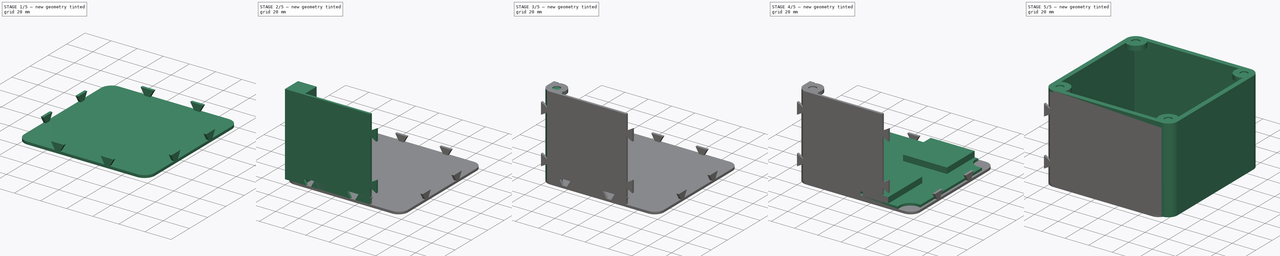
[diagram: build sequence overview — one tinted view per stage of 5, left to right]
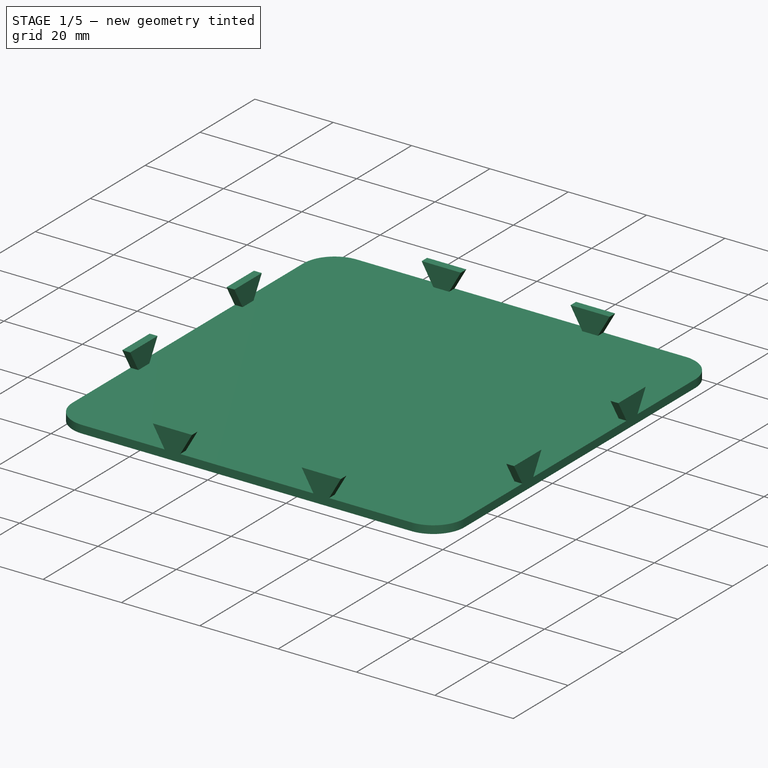
[diagram: stage 1 of 5 — iso view after this stage's code; geometry added in this stage tinted green]
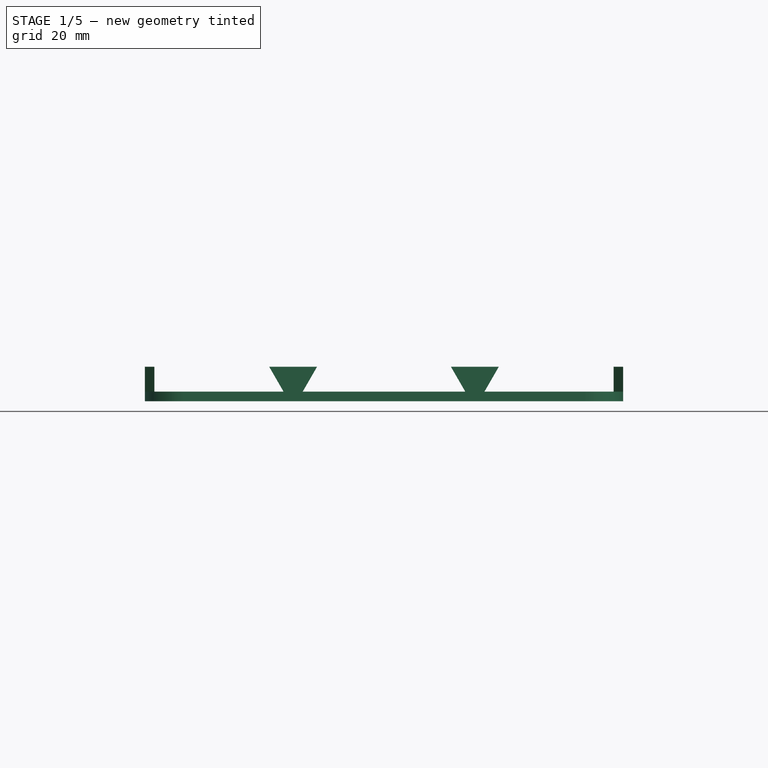
[diagram: stage 1 of 5 — front view after this stage's code; geometry added in this stage tinted green]
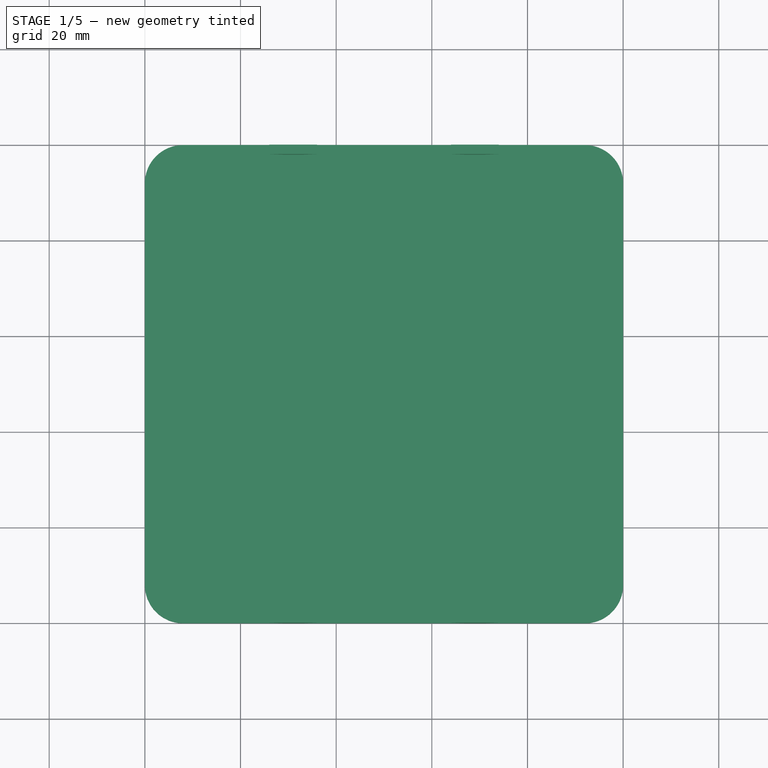
[diagram: stage 1 of 5 — top view after this stage's code; geometry added in this stage tinted green]
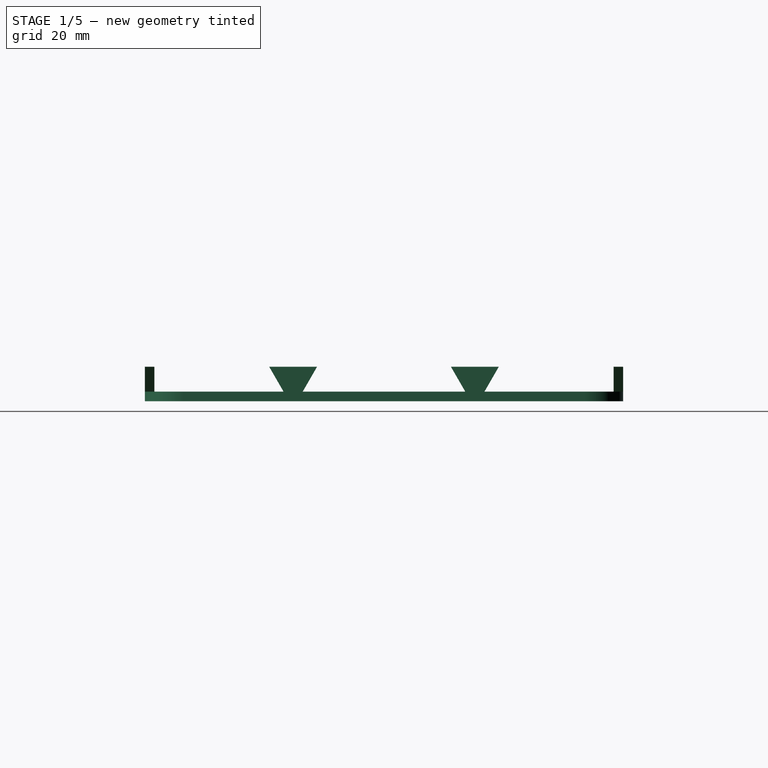
[diagram: stage 1 of 5 — right view after this stage's code; geometry added in this stage tinted green]
FCSTD DOCUMENT  (FreeCAD 0.17R13247 (Git))
Label: ermina_v5
License: All rights reserved
LicenseURL: http://en.wikipedia.org/wiki/All_rights_reserved
objects: Sketcher::SketchObject×20, PartDesign::Pocket×11, PartDesign::Pad×9, PartDesign::Body×5, PartDesign::Fillet×3
note: 68 computed .brp shape members not serialized (recipe doc carries the construction recipe); baked Part::Feature solids carry a one-line shape summary decoded from their .brp

FEATURE [PartDesign::Body] Body003  label="btm wall"
  Group = -> [Sketch016,Pad009,Sketch017,Pocket007,Sketch018,Pocket008]
  Origin = -> Origin003
  Placement = pos=(10.8,0,0) rot=(0,0,1;0rad)
  Tip = -> Pad009
FEATURE [Sketcher::SketchObject] Sketch019
  MapMode = 5
  Support = -> [XY_Plane004]
  sketch-geometry (4):
    g0: LineSegment StartX=0 StartY=0 StartZ=0 EndX=100 EndY=0 EndZ=0
    g1: LineSegment StartX=100 StartY=0 StartZ=0 EndX=100 EndY=100 EndZ=0
    g2: LineSegment StartX=100 StartY=100 StartZ=0 EndX=0 EndY=100 EndZ=0
    g3: LineSegment StartX=0 StartY=100 StartZ=0 EndX=0 EndY=0 EndZ=0
  constraints (13):
    c: Coincident(g0,g1)
    c: Coincident(g1,g2)
    c: Coincident(g2,g3)
    c: Coincident(g3,g0)
    c: Horizontal(g0)
    c: Horizontal(g2)
    c: Vertical(g1)
    c: Vertical(g3)
    c: Coincident(g0,g-1)
    c: Equal(g0,g1)
    c: Equal(g1,g2)
    c: Equal(g2,g3)
    c: DistanceX(g2,g2) = 100
FEATURE [PartDesign::Pad] Pad010
  Length = 2
  Length2 = 100
  Profile = -> Sketch019
  Reversed = true
  Type = 0
FEATURE [Sketcher::SketchObject] Sketch020
  ExternalGeometry = -> [Pad010]
  MapMode = 5
  Support = -> [Pad010]
  sketch-geometry (32):
    g0: LineSegment StartX=0 StartY=74 StartZ=0 EndX=2 EndY=74 EndZ=0
    g1: LineSegment StartX=2 StartY=74 StartZ=0 EndX=2 EndY=64 EndZ=0
    g2: LineSegment StartX=2 StartY=64 StartZ=0 EndX=0 EndY=64 EndZ=0
    g3: LineSegment StartX=0 StartY=64 StartZ=0 EndX=0 EndY=74 EndZ=0
    g4: LineSegment StartX=26 StartY=100 StartZ=0 EndX=36 EndY=100 EndZ=0
    g5: LineSegment StartX=36 StartY=100 StartZ=0 EndX=36 EndY=98 EndZ=0
    g6: LineSegment StartX=36 StartY=98 StartZ=0 EndX=26 EndY=98 EndZ=0
    g7: LineSegment StartX=26 StartY=98 StartZ=0 EndX=26 EndY=100 EndZ=0
    g8: LineSegment StartX=64 StartY=100 StartZ=0 EndX=74 EndY=100 EndZ=0
    g9: LineSegment StartX=74 StartY=100 StartZ=0 EndX=74 EndY=98 EndZ=0
    g10: LineSegment StartX=74 StartY=98 StartZ=0 EndX=64 EndY=98 EndZ=0
    g11: LineSegment StartX=64 StartY=98 StartZ=0 EndX=64 EndY=100 EndZ=0
    g12: LineSegment StartX=98 StartY=74 StartZ=0 EndX=100 EndY=74 EndZ=0
    g13: LineSegment StartX=100 StartY=74 StartZ=0 EndX=100 EndY=64 EndZ=0
    g14: LineSegment StartX=100 StartY=64 StartZ=0 EndX=98 EndY=64 EndZ=0
    g15: LineSegment StartX=98 StartY=64 StartZ=0 EndX=98 EndY=74 EndZ=0
    g16: LineSegment StartX=0 StartY=36 StartZ=0 EndX=2 EndY=36 EndZ=0
    g17: LineSegment StartX=2 StartY=36 StartZ=0 EndX=2 EndY=26 EndZ=0
    g18: LineSegment StartX=2 StartY=26 StartZ=0 EndX=0 EndY=26 EndZ=0
    g19: LineSegment StartX=0 StartY=26 StartZ=0 EndX=0 EndY=36 EndZ=0
    g20: LineSegment StartX=26 StartY=2 StartZ=0 EndX=36 EndY=2 EndZ=0
    g21: LineSegment StartX=36 StartY=2 StartZ=0 EndX=36 EndY=0 EndZ=0
    g22: LineSegment StartX=36 StartY=0 StartZ=0 EndX=26 EndY=0 EndZ=0
    g23: LineSegment StartX=26 StartY=0 StartZ=0 EndX=26 EndY=2 EndZ=0
    g24: LineSegment StartX=64 StartY=2 StartZ=0 EndX=74 EndY=2 EndZ=0
    g25: LineSegment StartX=74 StartY=2 StartZ=0 EndX=74 EndY=0 EndZ=0
    g26: LineSegment StartX=74 StartY=0 StartZ=0 EndX=64 EndY=0 EndZ=0
    g27: LineSegment StartX=64 StartY=0 StartZ=0 EndX=64 EndY=2 EndZ=0
    g28: LineSegment StartX=98 StartY=36 StartZ=0 EndX=100 EndY=36 EndZ=0
    g29: LineSegment StartX=100 StartY=36 StartZ=0 EndX=100 EndY=26 EndZ=0
    g30: LineSegment StartX=100 StartY=26 StartZ=0 EndX=98 EndY=26 EndZ=0
    g31: LineSegment StartX=98 StartY=26 StartZ=0 EndX=98 EndY=36 EndZ=0
  constraints (104):
    c: Coincident(g0,g1)
    c: Coincident(g1,g2)
    c: Coincident(g2,g3)
    c: Coincident(g3,g0)
    c: Horizontal(g0)
    c: Horizontal(g2)
    c: Vertical(g1)
    c: Vertical(g3)
    c: Coincident(g4,g5)
    c: Coincident(g5,g6)
    c: Coincident(g6,g7)
    c: Coincident(g7,g4)
    c: Horizontal(g4)
    c: Horizontal(g6)
    c: Vertical(g5)
    c: Vertical(g7)
    c: Coincident(g8,g9)
    c: Coincident(g9,g10)
    c: Coincident(g10,g11)
    c: Coincident(g11,g8)
    c: Horizontal(g8)
    c: Horizontal(g10)
    c: Vertical(g9)
    c: Vertical(g11)
    c: Coincident(g12,g13)
    c: Coincident(g13,g14)
    c: Coincident(g14,g15)
    c: Coincident(g15,g12)
    c: Horizontal(g12)
    c: Horizontal(g14)
    c: Vertical(g13)
    c: Vertical(g15)
    c: Coincident(g16,g17)
    c: Coincident(g17,g18)
    c: Coincident(g18,g19)
    c: Coincident(g19,g16)
    c: Horizontal(g16)
    c: Horizontal(g18)
    c: Vertical(g17)
    c: Vertical(g19)
    c: Coincident(g20,g21)
    c: Coincident(g21,g22)
    c: Coincident(g22,g23)
    c: Coincident(g23,g20)
    c: Horizontal(g20)
    c: Horizontal(g22)
    c: Vertical(g21)
    c: Vertical(g23)
    c: Coincident(g24,g25)
    c: Coincident(g25,g26)
    c: Coincident(g26,g27)
    c: Coincident(g27,g24)
    c: Horizontal(g24)
    c: Horizontal(g26)
    c: Vertical(g25)
    c: Vertical(g27)
    c: Coincident(g28,g29)
    c: Coincident(g29,g30)
    c: Coincident(g30,g31)
    c: Coincident(g31,g28)
    c: Horizontal(g28)
    c: Horizontal(g30)
    c: Vertical(g29)
    c: Vertical(g31)
    c: Equal(g26,g24)
    c: Equal(g24,g10)
    c: Equal(g10,g8)
    c: Equal(g8,g4)
    c: Equal(g4,g6)
    c: Equal(g6,g20)
    c: Equal(g20,g22)
    c: Equal(g7,g11)
    c: Equal(g11,g27)
    c: Equal(g27,g23)
    c: Equal(g3,g1)
    c: Equal(g1,g17)
    c: Equal(g17,g19)
    c: Equal(g19,g31)
    c: Equal(g31,g29)
    c: Equal(g29,g13)
    c: Equal(g13,g15)
    c: Equal(g0,g16)
    c: Equal(g16,g12)
    c: Equal(g12,g28)
    c: DistanceY(g3,g3) = 10
    c: DistanceX(g0,g0) = 2
    c: DistanceX(g4,g4) = 10
    c: DistanceY(g7,g7) = 2
    c: DistanceX(g-2,g22) = 26
    c: PointOnObject(g22,g-1)
    c: Distance(g25,g-3) = 26
    c: PointOnObject(g25,g-1)
    c: DistanceY(g-1,g29) = 26
    c: PointOnObject(g29,g-3)
    c: Distance(g12,g-4) = 26
    c: PointOnObject(g12,g-3)
    c: Distance(g8,g-3) = 26
    c: PointOnObject(g8,g-4)
    c: DistanceX(g-2,g4) = 26
    c: PointOnObject(g4,g-4)
    c: DistanceY(g-1,g18) = 26
    c: PointOnObject(g16,g-2)
    c: Distance(g0,g-4) = 26
    c: PointOnObject(g0,g-2)
FEATURE [PartDesign::Pad] Pad011
  BaseFeature = -> Pad010
  Length = 5.2
  Length2 = 100
  Profile = -> Sketch020
  Type = 0
FEATURE [Sketcher::SketchObject] Sketch021
  ExternalGeometry = -> [Pad011]
  MapMode = 5
  Placement = pos=(0,100,0) rot=(0,0.707107,0.707107;3.14159rad)
  Support = -> [Pad011]
  sketch-geometry (12):
    g0: LineSegment StartX=-74 StartY=5.2 StartZ=0 EndX=-71 EndY=0 EndZ=0
    g1: LineSegment StartX=-71 StartY=0 StartZ=0 EndX=-74 EndY=0 EndZ=0
    g2: LineSegment StartX=-74 StartY=0 StartZ=0 EndX=-74 EndY=5.2 EndZ=0
    g3: LineSegment StartX=-64 StartY=5.2 StartZ=0 EndX=-64 EndY=0 EndZ=0
    g4: LineSegment StartX=-64 StartY=0 StartZ=0 EndX=-67 EndY=0 EndZ=0
    g5: LineSegment StartX=-67 StartY=0 StartZ=0 EndX=-64 EndY=5.2 EndZ=0
    g6: LineSegment StartX=-36 StartY=5.2 StartZ=0 EndX=-36 EndY=0 EndZ=0
    g7: LineSegment StartX=-36 StartY=0 StartZ=0 EndX=-33 EndY=0 EndZ=0
    g8: LineSegment StartX=-33 StartY=0 StartZ=0 EndX=-36 EndY=5.2 EndZ=0
    g9: LineSegment StartX=-29 StartY=0 StartZ=0 EndX=-26 EndY=0 EndZ=0
    g10: LineSegment StartX=-26 StartY=0 StartZ=0 EndX=-26 EndY=5.2 EndZ=0
    g11: LineSegment StartX=-26 StartY=5.2 StartZ=0 EndX=-29 EndY=0 EndZ=0
  constraints (35):
    c: Coincident(g0,g1)
    c: Horizontal(g1)
    c: Coincident(g1,g2)
    c: Coincident(g2,g0)
    c: Vertical(g2)
    c: Vertical(g3)
    c: Coincident(g3,g4)
    c: Horizontal(g4)
    c: Coincident(g4,g5)
    c: Coincident(g5,g3)
    c: Vertical(g6)
    c: Coincident(g6,g7)
    c: Horizontal(g7)
    c: Coincident(g7,g8)
    c: Coincident(g8,g6)
    c: Horizontal(g9)
    c: Coincident(g9,g10)
    c: Vertical(g10)
    c: Coincident(g10,g11)
    c: Coincident(g11,g9)
    c: Equal(g2,g3)
    c: Equal(g3,g6)
    c: Equal(g6,g10)
    c: Equal(g0,g8)
    c: Equal(g5,g11)
    c: Equal(g1,g4)
    c: Equal(g4,g7)
    c: Equal(g7,g9)
    c: Coincident(g0,g-4)
    c: Coincident(g1,g-4)
    c: Coincident(g3,g-5)
    c: Distance(g0,g4) = 4
    c: Coincident(g10,g-6)
    c: Distance(g7,g9) = 4
    c: Coincident(g6,g-6)
FEATURE [PartDesign::Pocket] Pocket009
  BaseFeature = -> Pad011
  Length = 5
  Length2 = 100
  Profile = -> Sketch021
  Type = 1
FEATURE [Sketcher::SketchObject] Sketch022
  ExternalGeometry = -> [Pocket009]
  MapMode = 5
  Placement = pos=(100,0,0) rot=(0.57735,0.57735,0.57735;2.0944rad)
  Support = -> [Pocket009]
  sketch-geometry (12):
    g0: LineSegment StartX=26 StartY=5.2 StartZ=0 EndX=26 EndY=0 EndZ=0
    g1: LineSegment StartX=26 StartY=0 StartZ=0 EndX=29 EndY=0 EndZ=0
    g2: LineSegment StartX=29 StartY=0 StartZ=0 EndX=26 EndY=5.2 EndZ=0
    g3: LineSegment StartX=36 StartY=5.2 StartZ=0 EndX=36 EndY=0 EndZ=0
    g4: LineSegment StartX=36 StartY=0 StartZ=0 EndX=33 EndY=0 EndZ=0
    g5: LineSegment StartX=33 StartY=0 StartZ=0 EndX=36 EndY=5.2 EndZ=0
    g6: LineSegment StartX=64 StartY=5.2 StartZ=0 EndX=64 EndY=0 EndZ=0
    g7: LineSegment StartX=64 StartY=0 StartZ=0 EndX=67 EndY=0 EndZ=0
    g8: LineSegment StartX=67 StartY=0 StartZ=0 EndX=64 EndY=5.2 EndZ=0
    g9: LineSegment StartX=71 StartY=0 StartZ=0 EndX=74 EndY=0 EndZ=0
    g10: LineSegment StartX=74 StartY=0 StartZ=0 EndX=74 EndY=5.2 EndZ=0
    g11: LineSegment StartX=74 StartY=5.2 StartZ=0 EndX=71 EndY=0 EndZ=0
  constraints (33):
    c: Vertical(g0)
    c: Coincident(g0,g1)
    c: Horizontal(g1)
    c: Coincident(g1,g2)
    c: Coincident(g2,g0)
    c: Vertical(g3)
    c: Coincident(g3,g4)
    c: Horizontal(g4)
    c: Coincident(g4,g5)
    c: Coincident(g5,g3)
    c: Vertical(g6)
    c: Coincident(g6,g7)
    c: Horizontal(g7)
    c: Coincident(g7,g8)
    c: Coincident(g8,g6)
    c: Horizontal(g9)
    c: Coincident(g9,g10)
    c: Vertical(g10)
    c: Coincident(g10,g11)
    c: Coincident(g11,g9)
    c: Equal(g0,g3)
    c: Equal(g3,g6)
    c: Equal(g6,g10)
    c: Equal(g7,g9)
    c: Equal(g9,g4)
    c: Equal(g4,g1)
    c: Distance(g1,g4) = 4
    c: Coincident(g0,g-4)
    c: Coincident(g0,g-3)
    c: Coincident(g3,g-5)
    c: Coincident(g10,g-6)
    c: Distance(g7,g9) = 4
    c: Coincident(g6,g-6)
FEATURE [PartDesign::Pocket] Pocket010
  BaseFeature = -> Pocket009
  Length = 5
  Length2 = 100
  Profile = -> Sketch022
  Type = 1
FEATURE [PartDesign::Fillet] Fillet002
  Base = -> Pocket010 [Edge8,Edge5,Edge28,Edge18]
  BaseFeature = -> Pocket010
  Radius = 8
FEATURE [PartDesign::Body] Body004  label="btm floor"
  Group = -> [Sketch019,Pad010,Sketch020,Pad011,Sketch021,Pocket009,Sketch022,Pocket010,Fillet002]
  Origin = -> Origin004
  Tip = -> Fillet002
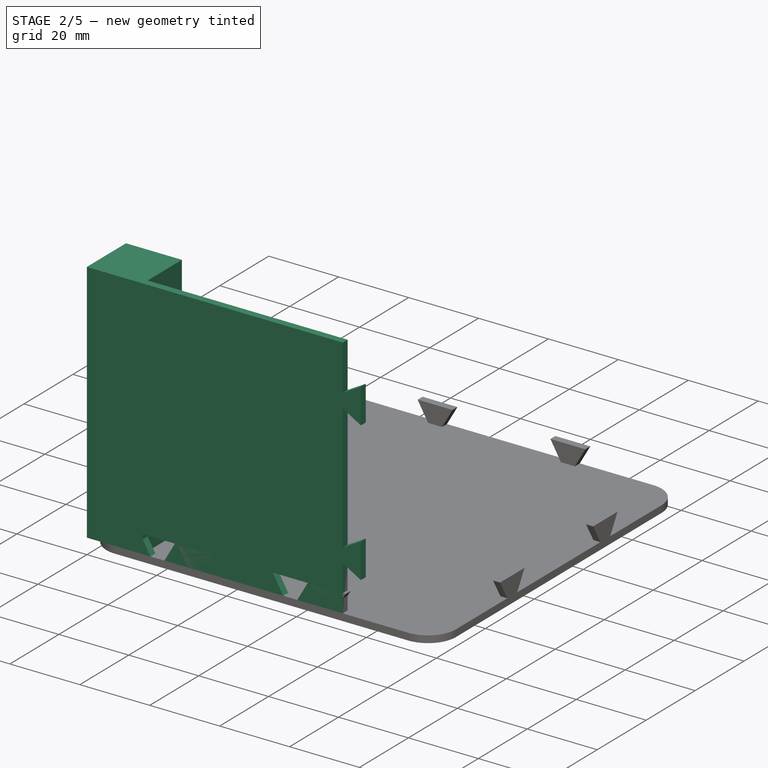
[diagram: stage 2 of 5 — iso view after this stage's code; geometry added in this stage tinted green]
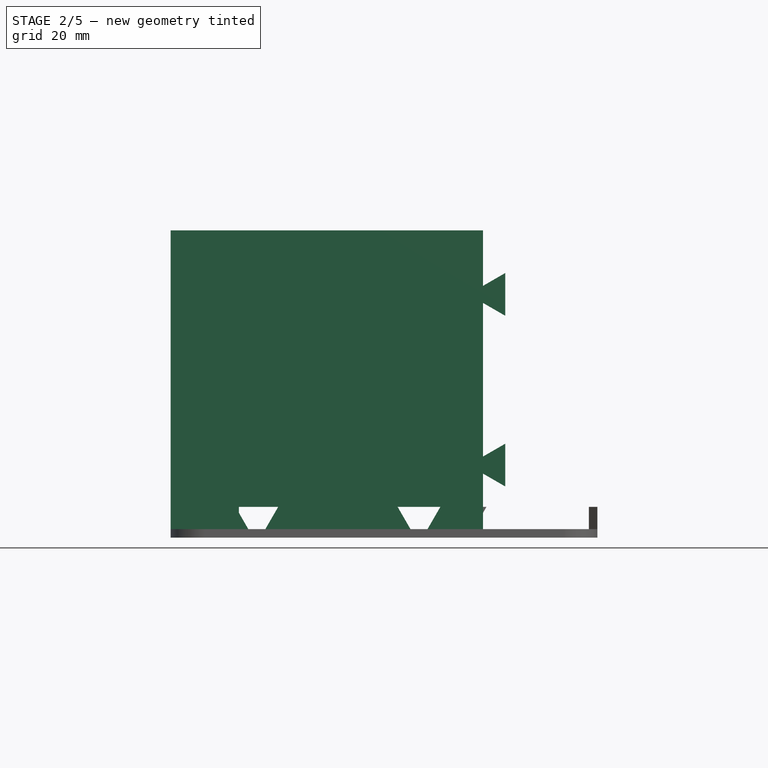
[diagram: stage 2 of 5 — front view after this stage's code; geometry added in this stage tinted green]
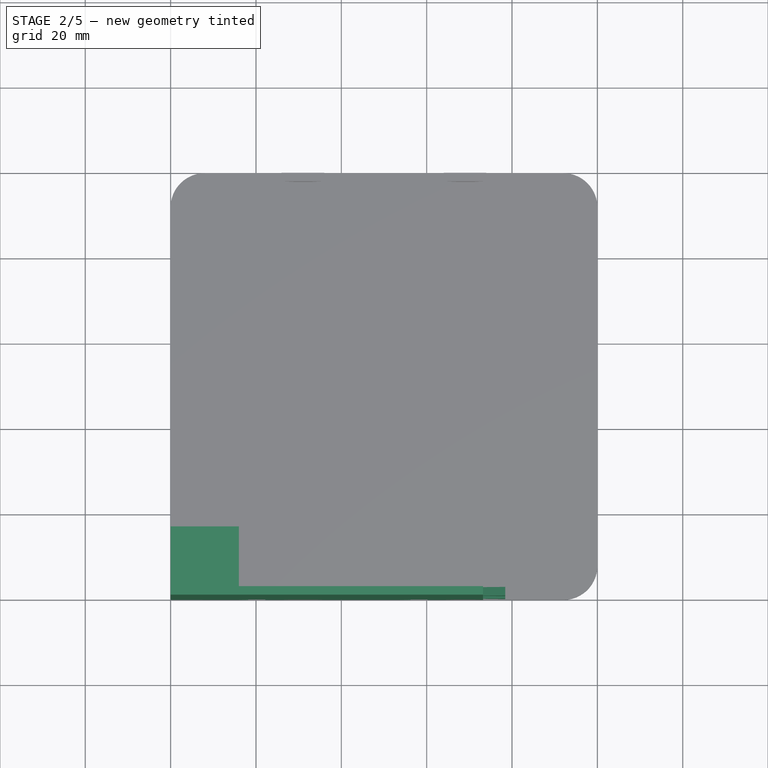
[diagram: stage 2 of 5 — top view after this stage's code; geometry added in this stage tinted green]
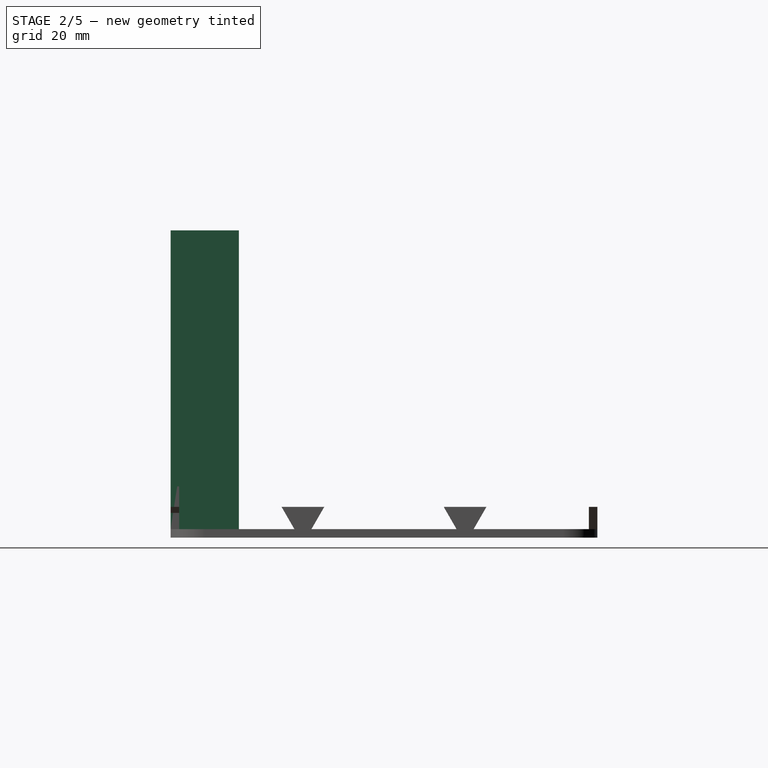
[diagram: stage 2 of 5 — right view after this stage's code; geometry added in this stage tinted green]
FEATURE [PartDesign::Body] Body
  Group = -> [Sketch,Pad,Sketch008,Pocket002,Sketch009,Pad006]
  Origin = -> Origin
  Placement = pos=(5,5,2) rot=(0,0,1;0rad)
  Tip = -> Pad006
FEATURE [Sketcher::SketchObject] Sketch010
  MapMode = 5
  Support = -> [XY_Plane002]
  sketch-geometry (4):
    g0: LineSegment StartX=0 StartY=0 StartZ=0 EndX=16 EndY=0 EndZ=0
    g1: LineSegment StartX=16 StartY=0 StartZ=0 EndX=16 EndY=16 EndZ=0
    g2: LineSegment StartX=16 StartY=16 StartZ=0 EndX=0 EndY=16 EndZ=0
    g3: LineSegment StartX=0 StartY=16 StartZ=0 EndX=0 EndY=0 EndZ=0
  constraints (13):
    c: Coincident(g0,g1)
    c: Coincident(g1,g2)
    c: Coincident(g2,g3)
    c: Coincident(g3,g0)
    c: Horizontal(g0)
    c: Horizontal(g2)
    c: Vertical(g1)
    c: Vertical(g3)
    c: Coincident(g0,g-1)
    c: Equal(g0,g1)
    c: Equal(g1,g2)
    c: Equal(g2,g3)
    c: DistanceX(g2,g2) = 16
FEATURE [PartDesign::Pad] Pad007
  Length = 70
  Length2 = 100
  Profile = -> Sketch010
  Type = 0
FEATURE [PartDesign::Body] Body002  label="btm corner"
  Group = -> [Sketch010,Pad007,Sketch011,Pocket003,Fillet001,Sketch012,Pad008,Sketch013,Pocket004,Sketch014,Pocket005,Sketch015,Pocket006]
  Origin = -> Origin002
  Tip = -> Pocket006
FEATURE [Sketcher::SketchObject] Sketch016
  MapMode = 5
  Support = -> [XY_Plane003]
  sketch-geometry (4):
    g0: LineSegment StartX=0 StartY=0 StartZ=0 EndX=78.4 EndY=0 EndZ=0
    g1: LineSegment StartX=78.4 StartY=0 StartZ=0 EndX=78.4 EndY=2 EndZ=0
    g2: LineSegment StartX=78.4 StartY=2 StartZ=0 EndX=0 EndY=2 EndZ=0
    g3: LineSegment StartX=0 StartY=2 StartZ=0 EndX=0 EndY=0 EndZ=0
  constraints (12):
    c: Coincident(g0,g1)
    c: Coincident(g1,g2)
    c: Coincident(g2,g3)
    c: Coincident(g3,g0)
    c: Horizontal(g0)
    c: Horizontal(g2)
    c: Vertical(g1)
    c: Vertical(g3)
    c: Coincident(g0,g-1)
    c: Equal(g2,g0)
    c: DistanceX(g2,g2) = 78.4
    c: DistanceY(g3,g3) = 2
FEATURE [PartDesign::Pad] Pad009
  Length = 70
  Length2 = 100
  Profile = -> Sketch016
  Type = 0
FEATURE [Sketcher::SketchObject] Sketch017
  ExternalGeometry = -> [Pad009]
  MapMode = 5
  Placement = pos=(0,0,0) rot=(1,0,0;1.5708rad)
  Support = -> [Pad009]
  sketch-geometry (24):
    g0: LineSegment StartX=0 StartY=70 StartZ=0 EndX=5.2 EndY=70 EndZ=0
    g1: LineSegment StartX=5.2 StartY=70 StartZ=0 EndX=5.2 EndY=56.9978 EndZ=0
    g2: LineSegment StartX=5.2 StartY=56.9978 StartZ=0 EndX=0 EndY=60 EndZ=0
    g3: LineSegment StartX=0 StartY=60 StartZ=0 EndX=0 EndY=70 EndZ=0
    g4: LineSegment StartX=0 StartY=49.9956 StartZ=0 EndX=5.2 EndY=52.9978 EndZ=0
    g5: LineSegment StartX=5.2 StartY=52.9978 StartZ=0 EndX=5.2 EndY=17.0022 EndZ=0
    g6: LineSegment StartX=5.2 StartY=17.0022 StartZ=0 EndX=0 EndY=20.0044 EndZ=0
    g7: LineSegment StartX=0 StartY=20.0044 StartZ=0 EndX=0 EndY=49.9956 EndZ=0
    g8: LineSegment StartX=0 StartY=0 StartZ=0 EndX=0 EndY=10 EndZ=0
    g9: LineSegment StartX=0 StartY=10 StartZ=0 EndX=5.2 EndY=13.0022 EndZ=0
    g10: LineSegment StartX=5.2 StartY=13.0022 StartZ=0 EndX=5.2 EndY=0 EndZ=0
    g11: LineSegment StartX=5.2 StartY=0 StartZ=0 EndX=0 EndY=0 EndZ=0
    g12: LineSegment StartX=73.2 StartY=0 StartZ=0 EndX=73.2 EndY=13.0022 EndZ=0
    g13: LineSegment StartX=73.2 StartY=13.0022 StartZ=0 EndX=78.4 EndY=10 EndZ=0
    g14: LineSegment StartX=78.4 StartY=10 StartZ=0 EndX=78.4 EndY=0 EndZ=0
    g15: LineSegment StartX=78.4 StartY=0 StartZ=0 EndX=73.2 EndY=0 EndZ=0
    g16: LineSegment StartX=73.2 StartY=52.9978 StartZ=0 EndX=73.2 EndY=17.0022 EndZ=0
    g17: LineSegment StartX=73.2 StartY=17.0022 StartZ=0 EndX=78.4 EndY=20.0044 EndZ=0
    g18: LineSegment StartX=78.4 StartY=20.0044 StartZ=0 EndX=78.4 EndY=49.9956 EndZ=0
    g19: LineSegment StartX=78.4 StartY=49.9956 StartZ=0 EndX=73.2 EndY=52.9978 EndZ=0
    g20: LineSegment StartX=73.2 StartY=70 StartZ=0 EndX=78.4 EndY=70 EndZ=0
    g21: LineSegment StartX=78.4 StartY=70 StartZ=0 EndX=78.4 EndY=60 EndZ=0
    g22: LineSegment StartX=78.4 StartY=60 StartZ=0 EndX=73.2 EndY=56.9978 EndZ=0
    g23: LineSegment StartX=73.2 StartY=56.9978 StartZ=0 EndX=73.2 EndY=70 EndZ=0
  constraints (70):
    c: Horizontal(g0)
    c: Coincident(g0,g1)
    c: Vertical(g1)
    c: Coincident(g1,g2)
    c: Coincident(g2,g3)
    c: Coincident(g3,g0)
    c: Coincident(g4,g5)
    c: Vertical(g5)
    c: Coincident(g5,g6)
    c: Coincident(g6,g7)
    c: Coincident(g7,g4)
    c: Vertical(g7)
    c: Vertical(g8)
    c: Coincident(g8,g9)
    c: Coincident(g9,g10)
    c: Vertical(g10)
    c: Coincident(g10,g11)
    c: Coincident(g11,g8)
    c: Vertical(g12)
    c: Coincident(g12,g13)
    c: Coincident(g13,g14)
    c: Vertical(g14)
    c: Coincident(g14,g15)
    c: Coincident(g15,g12)
    c: Horizontal(g15)
    c: Vertical(g16)
    c: Coincident(g16,g17)
    c: Coincident(g17,g18)
    c: Vertical(g18)
    c: Coincident(g18,g19)
    c: Coincident(g19,g16)
    c: Coincident(g20,g21)
    c: Vertical(g21)
    c: Coincident(g21,g22)
    c: Coincident(g22,g23)
    c: Coincident(g23,g20)
    c: Vertical(g23)
    c: Vertical(g3)
    c: Equal(g0,g20)
    c: Equal(g20,g15)
    c: Equal(g15,g11)
    c: Horizontal(g11)
    c: Equal(g1,g23)
    c: Equal(g23,g12)
    c: Equal(g12,g10)
    c: Equal(g5,g16)
    c: Horizontal(g20)
    c: Equal(g4,g17)
    c: Equal(g17,g22)
    c: Equal(g22,g9)
    c: Equal(g2,g6)
    c: Equal(g6,g13)
    c: Equal(g13,g19)
    c: Equal(g7,g18)
    c: Equal(g3,g21)
    c: Equal(g21,g14)
    c: Equal(g14,g8)
    c: DistanceY(g3,g3) = 10
    c: Coincident(g0,g-3)
    c: DistanceX(g0,g0) = 5.2
    c: Angle(g1,g2) = 1.0472
    c: Coincident(g8,g-1)
    c: Coincident(g20,g-3)
    c: Coincident(g14,g-4)
    c: PointOnObject(g4,g-2)
    c: Angle(g4,g5) = 1.0472
    c: Distance(g4,g1) = 4
    c: Distance(g5,g9) = 4
    c: PointOnObject(g18,g-5)
    c: Distance(g16,g22) = 4
FEATURE [PartDesign::Pocket] Pocket007
  BaseFeature = -> Pad009
  Length = 5
  Length2 = 100
  Profile = -> Sketch017
  Type = 1
FEATURE [Sketcher::SketchObject] Sketch018
  ExternalGeometry = -> [Pocket007]
  MapMode = 5
  Placement = pos=(0,0,0) rot=(1,0,0;1.5708rad)
  Support = -> [Pocket007]
  sketch-geometry (8):
    g0: LineSegment StartX=18.2 StartY=0 StartZ=0 EndX=15.2 EndY=5.19615 EndZ=0
    g1: LineSegment StartX=15.2 StartY=5.19615 StartZ=0 EndX=25.2 EndY=5.19615 EndZ=0
    g2: LineSegment StartX=25.2 StartY=5.19615 StartZ=0 EndX=22.2 EndY=0 EndZ=0
    g3: LineSegment StartX=22.2 StartY=0 StartZ=0 EndX=18.2 EndY=0 EndZ=0
    g4: LineSegment StartX=56.2 StartY=0 StartZ=0 EndX=53.2 EndY=5.19615 EndZ=0
    g5: LineSegment StartX=53.2 StartY=5.19615 StartZ=0 EndX=63.2 EndY=5.19615 EndZ=0
    g6: LineSegment StartX=63.2 StartY=5.19615 StartZ=0 EndX=60.2 EndY=0 EndZ=0
    g7: LineSegment StartX=60.2 StartY=0 StartZ=0 EndX=56.2 EndY=0 EndZ=0
  constraints (24):
    c: Coincident(g0,g1)
    c: Coincident(g1,g2)
    c: Coincident(g2,g3)
    c: Coincident(g3,g0)
    c: Coincident(g4,g5)
    c: Horizontal(g5)
    c: Coincident(g5,g6)
    c: Coincident(g6,g7)
    c: Coincident(g7,g4)
    c: Horizontal(g3)
    c: Horizontal(g7)
    c: Horizontal(g1)
    c: Equal(g3,g7)
    c: Equal(g1,g5)
    c: Equal(g0,g4)
    c: Equal(g2,g6)
    c: Angle(g3,g0) = 2.0944
    c: Angle(g6,g7) = 2.0944
    c: DistanceX(g1,g1) = 10
    c: Distance(g2) = 6
    c: PointOnObject(g0,g-1)
    c: PointOnObject(g6,g-1)
    c: Distance(g0,g-4) = 10
    c: Distance(g5,g-5) = 10
FEATURE [PartDesign::Pocket] Pocket008
  BaseFeature = -> Pocket007
  Length = 5
  Length2 = 100
  Profile = -> Sketch018
  Type = 1
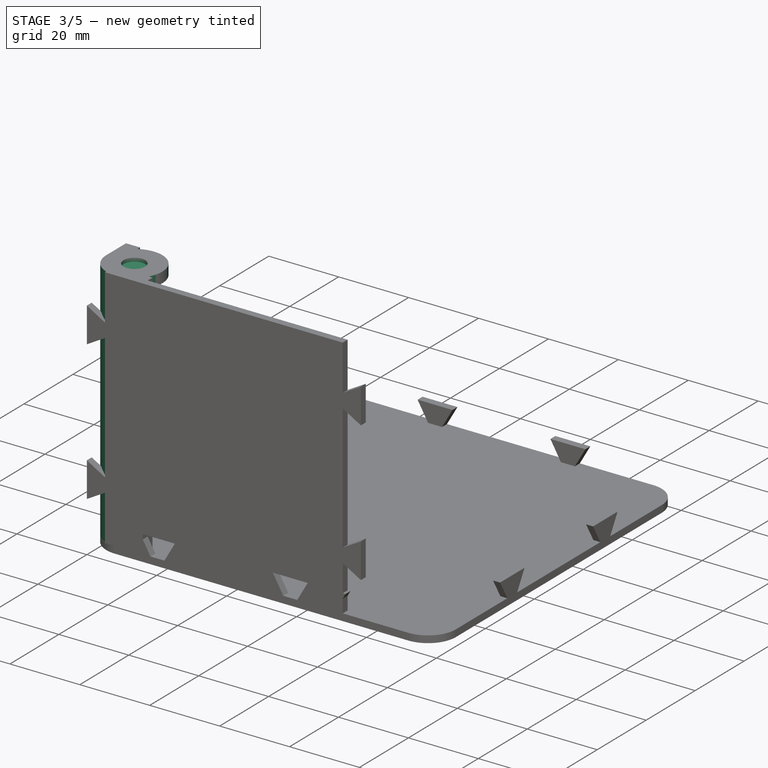
[diagram: stage 3 of 5 — iso view after this stage's code; geometry added in this stage tinted green]
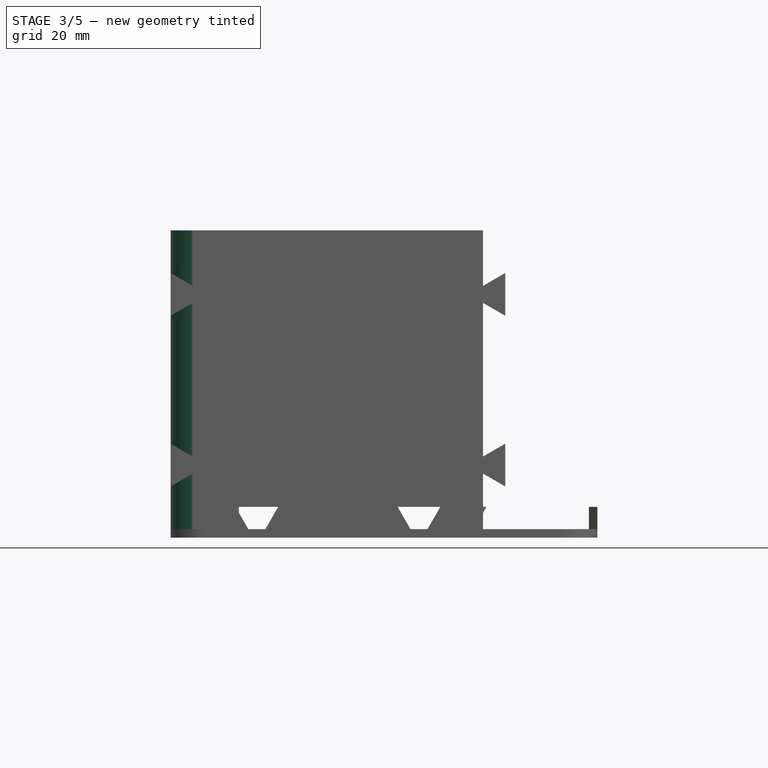
[diagram: stage 3 of 5 — front view after this stage's code; geometry added in this stage tinted green]
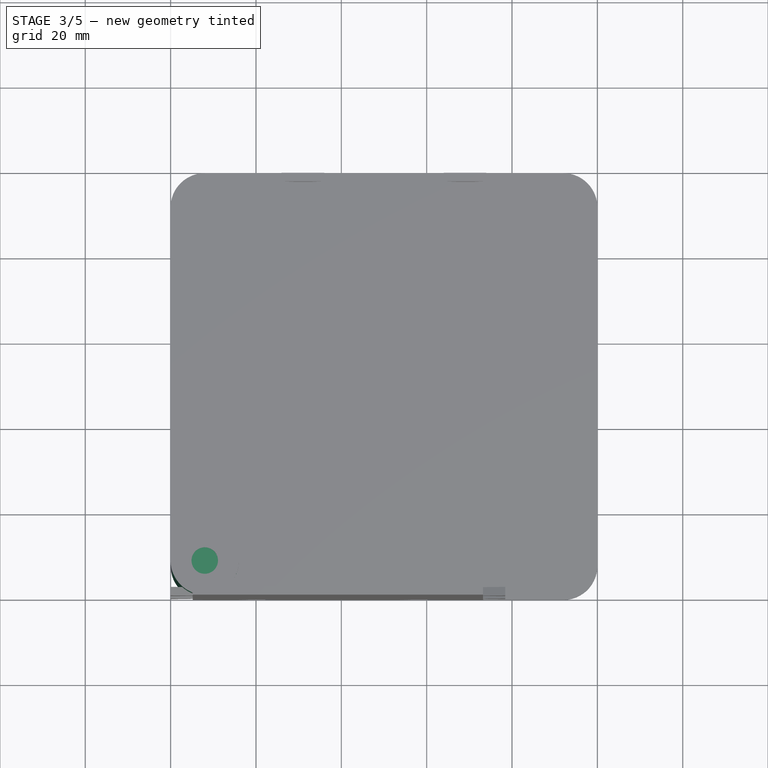
[diagram: stage 3 of 5 — top view after this stage's code; geometry added in this stage tinted green]
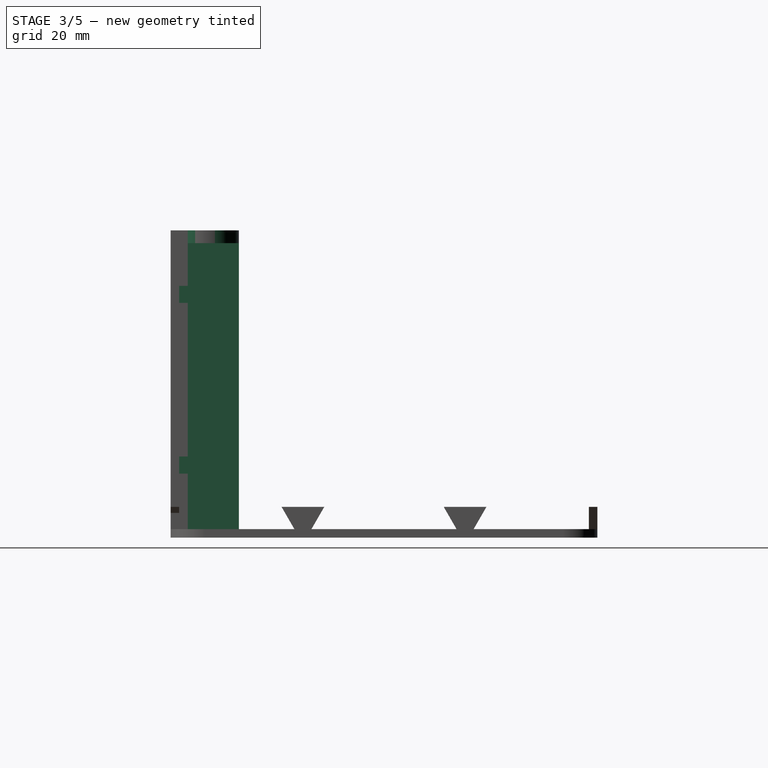
[diagram: stage 3 of 5 — right view after this stage's code; geometry added in this stage tinted green]
FEATURE [Sketcher::SketchObject] Sketch011
  ExternalGeometry = -> [Pad007]
  MapMode = 5
  Placement = pos=(0,0,70) rot=(0,0,1;0rad)
  Support = -> [Pad007]
  sketch-geometry (4):
    g0: LineSegment StartX=4 StartY=16 StartZ=0 EndX=16 EndY=16 EndZ=0
    g1: LineSegment StartX=16 StartY=16 StartZ=0 EndX=16 EndY=4 EndZ=0
    g2: LineSegment StartX=16 StartY=4 StartZ=0 EndX=4 EndY=4 EndZ=0
    g3: LineSegment StartX=4 StartY=4 StartZ=0 EndX=4 EndY=16 EndZ=0
  constraints (13):
    c: Coincident(g0,g1)
    c: Coincident(g1,g2)
    c: Coincident(g2,g3)
    c: Coincident(g3,g0)
    c: Horizontal(g0)
    c: Vertical(g1)
    c: Vertical(g3)
    c: Equal(g0,g1)
    c: Equal(g1,g2)
    c: Equal(g2,g3)
    c: DistanceX(g-2,g2) = 4
    c: DistanceY(g-1,g2) = 4
    c: PointOnObject(g0,g-3)
FEATURE [PartDesign::Pocket] Pocket003
  BaseFeature = -> Pad007
  Length = 5
  Length2 = 100
  Profile = -> Sketch011
  Type = 1
FEATURE [PartDesign::Fillet] Fillet001
  Base = -> Pocket003 [Edge1]
  BaseFeature = -> Pocket003
  Radius = 8
FEATURE [Sketcher::SketchObject] Sketch012
  ExternalGeometry = -> [Fillet001]
  MapMode = 5
  Placement = pos=(0,0,70) rot=(0,0,1;0rad)
  Support = -> [Fillet001]
  sketch-geometry (1):
    g0: Circle CenterX=8 CenterY=8 CenterZ=0 NormalX=0 NormalY=0 NormalZ=1 AngleXU=0 Radius=8
  constraints (2):
    c: Radius(g0) = 8
    c: Coincident(g0,g-3)
FEATURE [PartDesign::Pad] Pad008
  BaseFeature = -> Fillet001
  Length = 3
  Length2 = 100
  Profile = -> Sketch012
  Reversed = true
  Type = 0
FEATURE [Sketcher::SketchObject] Sketch013
  ExternalGeometry = -> [Pad008]
  MapMode = 5
  Placement = pos=(0,0,70) rot=(0,0,1;0rad)
  Support = -> [Pad008]
  sketch-geometry (1):
    g0: Circle CenterX=8 CenterY=8 CenterZ=0 NormalX=0 NormalY=0 NormalZ=1 AngleXU=0 Radius=3.1
  constraints (2):
    c: Coincident(g0,g-3)
    c: Radius(g0) = 3.1
FEATURE [PartDesign::Pocket] Pocket004
  BaseFeature = -> Pad008
  Length = 1
  Length2 = 100
  Profile = -> Sketch013
  Type = 0
FEATURE [Sketcher::SketchObject] Sketch014
  ExternalGeometry = -> [Pocket004]
  MapMode = 5
  Placement = pos=(0,0,0) rot=(1,0,0;1.5708rad)
  Support = -> [Pocket004]
  sketch-geometry (8):
    g0: LineSegment StartX=16 StartY=57 StartZ=0 EndX=10.8038 EndY=60 EndZ=0
    g1: LineSegment StartX=10.8038 StartY=60 StartZ=0 EndX=10.8038 EndY=50 EndZ=0
    g2: LineSegment StartX=10.8038 StartY=50 StartZ=0 EndX=16 EndY=53 EndZ=0
    g3: LineSegment StartX=16 StartY=53 StartZ=0 EndX=16 EndY=57 EndZ=0
    g4: LineSegment StartX=16 StartY=17 StartZ=0 EndX=10.8038 EndY=20 EndZ=0
    g5: LineSegment StartX=10.8038 StartY=20 StartZ=0 EndX=10.8038 EndY=10 EndZ=0
    g6: LineSegment StartX=10.8038 StartY=10 StartZ=0 EndX=16 EndY=13 EndZ=0
    g7: LineSegment StartX=16 StartY=13 StartZ=0 EndX=16 EndY=17 EndZ=0
  constraints (24):
    c: Coincident(g0,g1)
    c: Vertical(g1)
    c: Coincident(g1,g2)
    c: Coincident(g2,g3)
    c: Coincident(g3,g0)
    c: Vertical(g3)
    c: Angle(g3,g2) = 2.0944
    c: PointOnObject(g0,g-3)
    c: Equal(g0,g2)
    c: Distance(g0) = 6
    c: DistanceY(g1,g1) = 10
    c: Distance(g0,g-4) = 10
    c: Coincident(g4,g5)
    c: Vertical(g5)
    c: Coincident(g5,g6)
    c: Coincident(g6,g7)
    c: Coincident(g7,g4)
    c: Vertical(g7)
    c: PointOnObject(g6,g-3)
    c: DistanceY(g-1,g5) = 10
    c: Equal(g1,g5)
    c: Equal(g7,g3)
    c: Equal(g6,g2)
    c: Equal(g4,g0)
FEATURE [PartDesign::Pocket] Pocket005
  BaseFeature = -> Pocket004
  Length = 5
  Length2 = 100
  Profile = -> Sketch014
  Type = 1
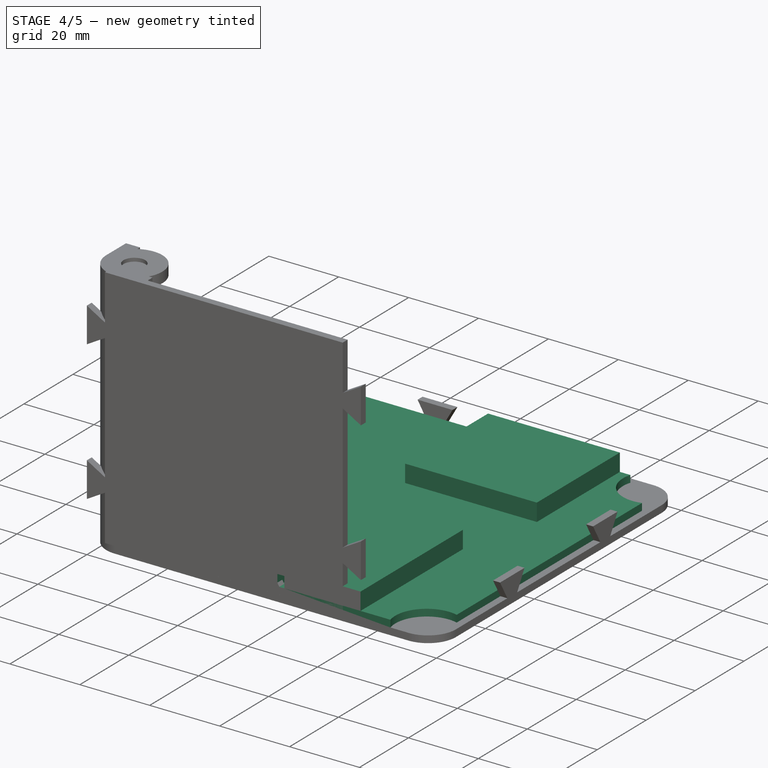
[diagram: stage 4 of 5 — iso view after this stage's code; geometry added in this stage tinted green]
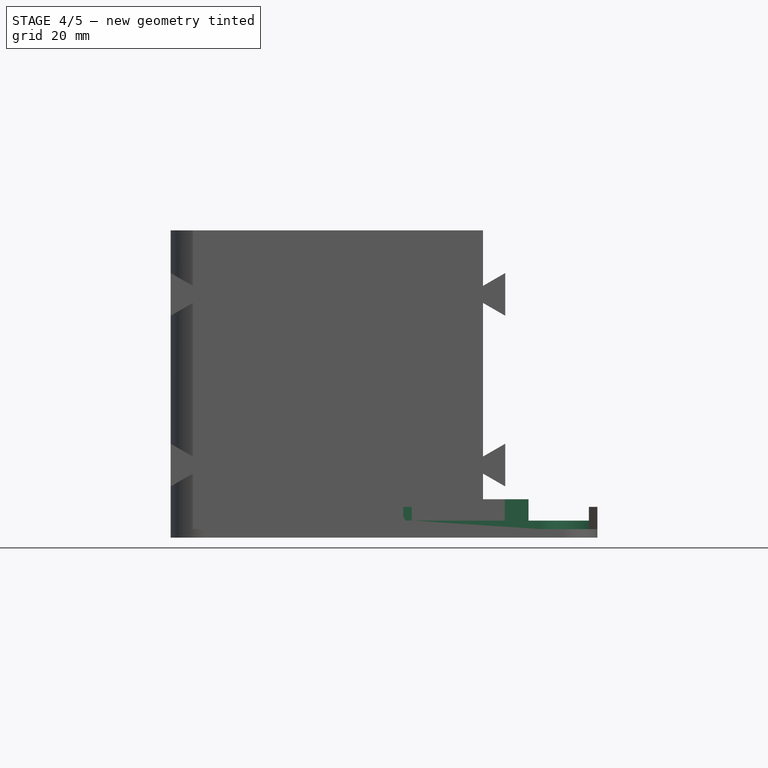
[diagram: stage 4 of 5 — front view after this stage's code; geometry added in this stage tinted green]
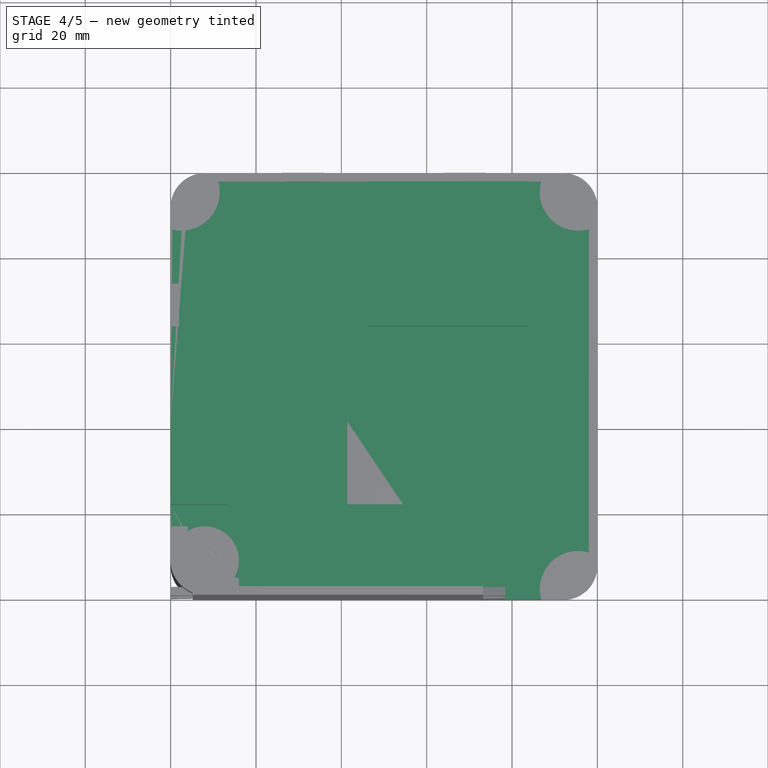
[diagram: stage 4 of 5 — top view after this stage's code; geometry added in this stage tinted green]
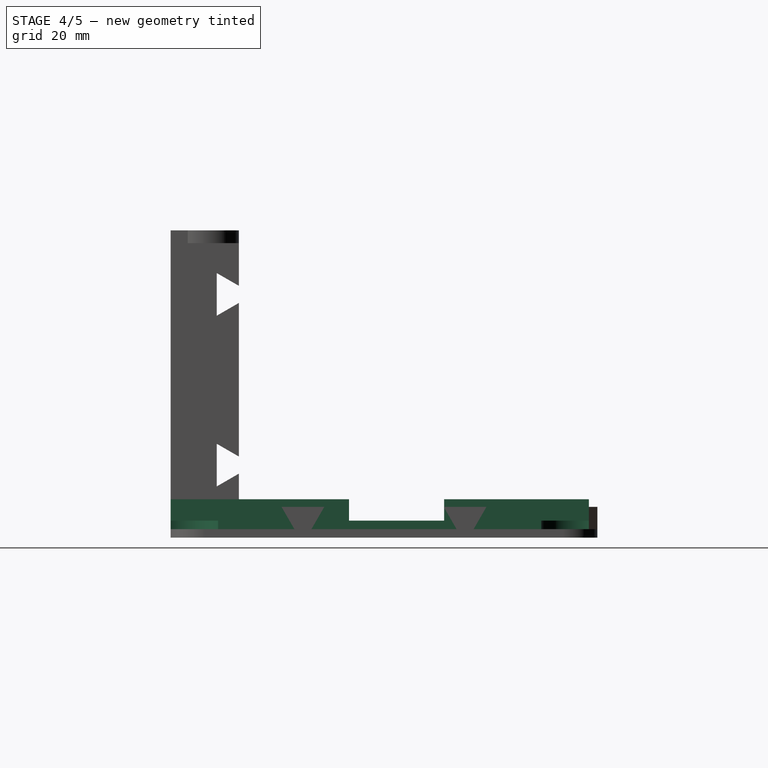
[diagram: stage 4 of 5 — right view after this stage's code; geometry added in this stage tinted green]
FEATURE [PartDesign::Body] Body001
  Group = -> [Sketch004,Pad004,Sketch005,Pocket,Fillet,Sketch006,Pad005,Sketch007,Pocket001]
  Origin = -> Origin001
  Tip = -> Pocket001
FEATURE [Sketcher::SketchObject] Sketch
  MapMode = 5
  Support = -> [XY_Plane]
  sketch-geometry (4):
    g0: LineSegment StartX=0 StartY=0 StartZ=0 EndX=98 EndY=0 EndZ=0
    g1: LineSegment StartX=98 StartY=0 StartZ=0 EndX=98 EndY=98 EndZ=0
    g2: LineSegment StartX=98 StartY=98 StartZ=0 EndX=0 EndY=98 EndZ=0
    g3: LineSegment StartX=0 StartY=98 StartZ=0 EndX=0 EndY=0 EndZ=0
  constraints (13):
    c: Coincident(g0,g1)
    c: Coincident(g1,g2)
    c: Coincident(g2,g3)
    c: Coincident(g3,g0)
    c: Horizontal(g0)
    c: Horizontal(g2)
    c: Vertical(g1)
    c: Vertical(g3)
    c: Coincident(g0,g-1)
    c: Equal(g0,g1)
    c: Equal(g1,g2)
    c: Equal(g2,g3)
    c: DistanceX(g0,g0) = 98
FEATURE [PartDesign::Pad] Pad
  Length = 2
  Length2 = 100
  Profile = -> Sketch
  Type = 0
FEATURE [Sketcher::SketchObject] Sketch008
  ExternalGeometry = -> [Pad]
  MapMode = 5
  Placement = pos=(0,0,2) rot=(0,0,1;0rad)
  Support = -> [Pad]
  sketch-geometry (4):
    g0: Circle CenterX=2.5 CenterY=95.5 CenterZ=0 NormalX=0 NormalY=0 NormalZ=1 AngleXU=0 Radius=9
    g1: Circle CenterX=95.5 CenterY=95.5 CenterZ=0 NormalX=0 NormalY=0 NormalZ=1 AngleXU=0 Radius=9
    g2: Circle CenterX=95.5 CenterY=2.5 CenterZ=0 NormalX=0 NormalY=0 NormalZ=1 AngleXU=0 Radius=9
    g3: Circle CenterX=2.5 CenterY=2.5 CenterZ=0 NormalX=0 NormalY=0 NormalZ=1 AngleXU=0 Radius=9
  constraints (12):
    c: Equal(g0,g1)
    c: Equal(g1,g2)
    c: Equal(g2,g3)
    c: Radius(g0) = 9
    c: DistanceX(g-2,g0) = 2.5
    c: Distance(g0,g-3) = 2.5
    c: Distance(g1,g-3) = 2.5
    c: Distance(g1,g-4) = 2.5
    c: Distance(g2,g-4) = 2.5
    c: DistanceY(g-1,g2) = 2.5
    c: DistanceX(g-2,g3) = 2.5
    c: DistanceY(g-1,g3) = 2.5
FEATURE [PartDesign::Pocket] Pocket002
  BaseFeature = -> Pad
  Length = 5
  Length2 = 100
  Profile = -> Sketch008
  Type = 1
FEATURE [Sketcher::SketchObject] Sketch009
  ExternalGeometry = -> [Pocket002]
  MapMode = 5
  Placement = pos=(0,0,2) rot=(0,0,1;0rad)
  Support = -> [Pocket002]
  sketch-geometry (16):
    g0: LineSegment StartX=13.5 StartY=22.3 StartZ=0 EndX=54.5 EndY=22.3 EndZ=0
    g1: LineSegment StartX=54.5 StartY=22.3 StartZ=0 EndX=54.5 EndY=0 EndZ=0
    g2: LineSegment StartX=54.5 StartY=0 StartZ=0 EndX=13.5 EndY=0 EndZ=0
    g3: LineSegment StartX=13.5 StartY=0 StartZ=0 EndX=13.5 EndY=22.3 EndZ=0
    g4: LineSegment StartX=0 StartY=41.8 StartZ=0 EndX=41.4 EndY=41.8 EndZ=0
    g5: LineSegment StartX=41.4 StartY=41.8 StartZ=0 EndX=41.4 EndY=22.3 EndZ=0
    g6: LineSegment StartX=41.4 StartY=22.3 StartZ=0 EndX=0 EndY=22.3 EndZ=0
    g7: LineSegment StartX=0 StartY=22.3 StartZ=0 EndX=0 EndY=41.8 EndZ=0
    g8: LineSegment StartX=56.5 StartY=41.8 StartZ=0 EndX=78.3 EndY=41.8 EndZ=0
    g9: LineSegment StartX=78.3 StartY=41.8 StartZ=0 EndX=78.3 EndY=0 EndZ=0
    g10: LineSegment StartX=78.3 StartY=0 StartZ=0 EndX=56.5 EndY=0 EndZ=0
    g11: LineSegment StartX=56.5 StartY=0 StartZ=0 EndX=56.5 EndY=41.8 EndZ=0
    g12: LineSegment StartX=46.1542 StartY=98 StartZ=0 EndX=83.8542 EndY=98 EndZ=0
    g13: LineSegment StartX=83.8542 StartY=98 StartZ=0 EndX=83.8542 EndY=64.1 EndZ=0
    g14: LineSegment StartX=83.8542 StartY=64.1 StartZ=0 EndX=46.1542 EndY=64.1 EndZ=0
    g15: LineSegment StartX=46.1542 StartY=64.1 StartZ=0 EndX=46.1542 EndY=98 EndZ=0
  constraints (54):
    c: Coincident(g0,g1)
    c: Coincident(g1,g2)
    c: Coincident(g2,g3)
    c: Coincident(g3,g0)
    c: Horizontal(g0)
    c: Horizontal(g2)
    c: Vertical(g1)
    c: Vertical(g3)
    c: Equal(g1,g3)
    c: DistanceX(g0,g0) = 41
    c: DistanceY(g1,g1) = 22.3
    c: PointOnObject(g2,g-1)
    c: Distance(g-3,g3) = 2
    c: Coincident(g4,g5)
    c: Coincident(g5,g6)
    c: Coincident(g6,g7)
    c: Coincident(g7,g4)
    c: Horizontal(g4)
    c: Horizontal(g6)
    c: Vertical(g5)
    c: Vertical(g7)
    c: Equal(g4,g6)
    c: Equal(g7,g5)
    c: DistanceX(g4,g4) = 41.4
    c: DistanceY(g5,g5) = 19.5
    c: PointOnObject(g6,g0)
    c: PointOnObject(g4,g-2)
    c: Coincident(g8,g9)
    c: Coincident(g9,g10)
    c: Coincident(g10,g11)
    c: Coincident(g11,g8)
    c: Horizontal(g8)
    c: Horizontal(g10)
    c: Vertical(g9)
    c: Vertical(g11)
    c: Equal(g11,g9)
    c: Equal(g8,g10)
    c: DistanceY(g9,g9) = 41.8
    c: DistanceX(g8,g8) = 21.8
    c: PointOnObject(g10,g-1)
    c: Distance(g1,g11) = 2
    c: Coincident(g12,g13)
    c: Coincident(g13,g14)
    c: Coincident(g14,g15)
    c: Coincident(g15,g12)
    c: Horizontal(g12)
    c: Horizontal(g14)
    c: Vertical(g13)
    c: Vertical(g15)
    c: Equal(g12,g14)
    c: DistanceX(g12,g12) = 37.7
    c: DistanceY(g13,g13) = 33.9
    c: PointOnObject(g12,g-5)
    c: Distance(g-5,g13) = 3
FEATURE [PartDesign::Pad] Pad006
  BaseFeature = -> Pocket002
  Length = 5
  Length2 = 100
  Profile = -> Sketch009
  Type = 0
FEATURE [Sketcher::SketchObject] Sketch015
  ExternalGeometry = -> [Pocket005]
  MapMode = 5
  Placement = pos=(0,0,0) rot=(0.57735,-0.57735,-0.57735;2.0944rad)
  Support = -> [Pocket005]
  sketch-geometry (8):
    g0: LineSegment StartX=-16 StartY=57 StartZ=0 EndX=-10.8038 EndY=60 EndZ=0
    g1: LineSegment StartX=-10.8038 StartY=60 StartZ=0 EndX=-10.8038 EndY=50 EndZ=0
    g2: LineSegment StartX=-10.8038 StartY=50 StartZ=0 EndX=-16 EndY=53 EndZ=0
    g3: LineSegment StartX=-16 StartY=53 StartZ=0 EndX=-16 EndY=57 EndZ=0
    g4: LineSegment StartX=-16 StartY=17 StartZ=0 EndX=-10.8038 EndY=20 EndZ=0
    g5: LineSegment StartX=-10.8038 StartY=20 StartZ=0 EndX=-10.8038 EndY=10 EndZ=0
    g6: LineSegment StartX=-10.8038 StartY=10 StartZ=0 EndX=-16 EndY=13 EndZ=0
    g7: LineSegment StartX=-16 StartY=13 StartZ=0 EndX=-16 EndY=17 EndZ=0
  constraints (24):
    c: Coincident(g0,g1)
    c: Vertical(g1)
    c: Coincident(g1,g2)
    c: Coincident(g2,g3)
    c: Coincident(g3,g0)
    c: Vertical(g3)
    c: Coincident(g4,g5)
    c: Coincident(g5,g6)
    c: Coincident(g6,g7)
    c: Coincident(g7,g4)
    c: Vertical(g5)
    c: Vertical(g7)
    c: Equal(g0,g2)
    c: Equal(g2,g4)
    c: Equal(g4,g6)
    c: Equal(g7,g3)
    c: Equal(g5,g1)
    c: Angle(g6,g7) = 2.0944
    c: DistanceY(g5,g5) = 10
    c: Distance(g4) = 6
    c: PointOnObject(g0,g-3)
    c: Distance(g0,g-4) = 10
    c: PointOnObject(g6,g-3)
    c: DistanceY(g-1,g5) = 10
FEATURE [PartDesign::Pocket] Pocket006
  BaseFeature = -> Pocket005
  Length = 5
  Length2 = 100
  Profile = -> Sketch015
  Type = 1
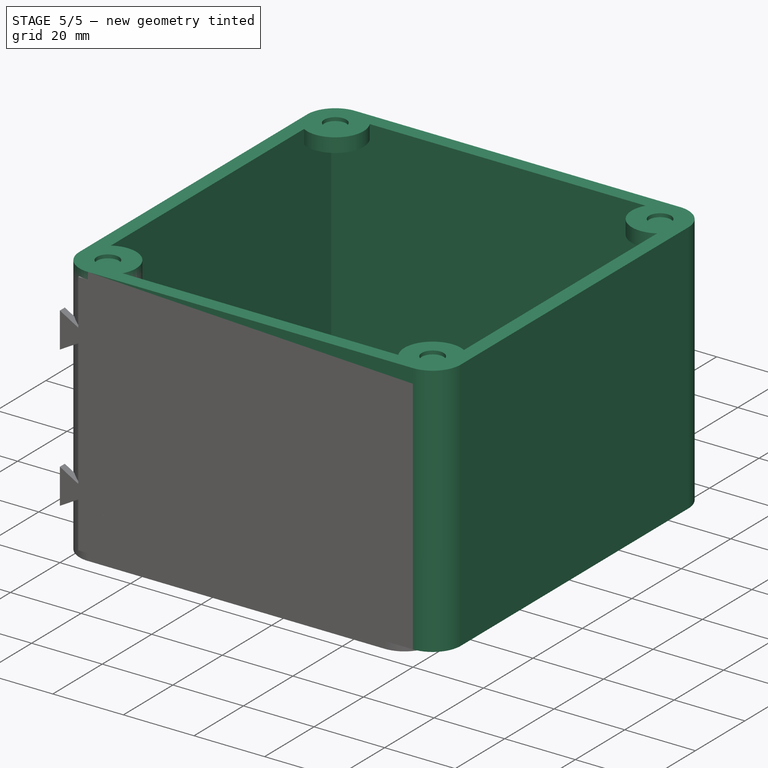
[diagram: stage 5 of 5 — iso view after this stage's code; geometry added in this stage tinted green]
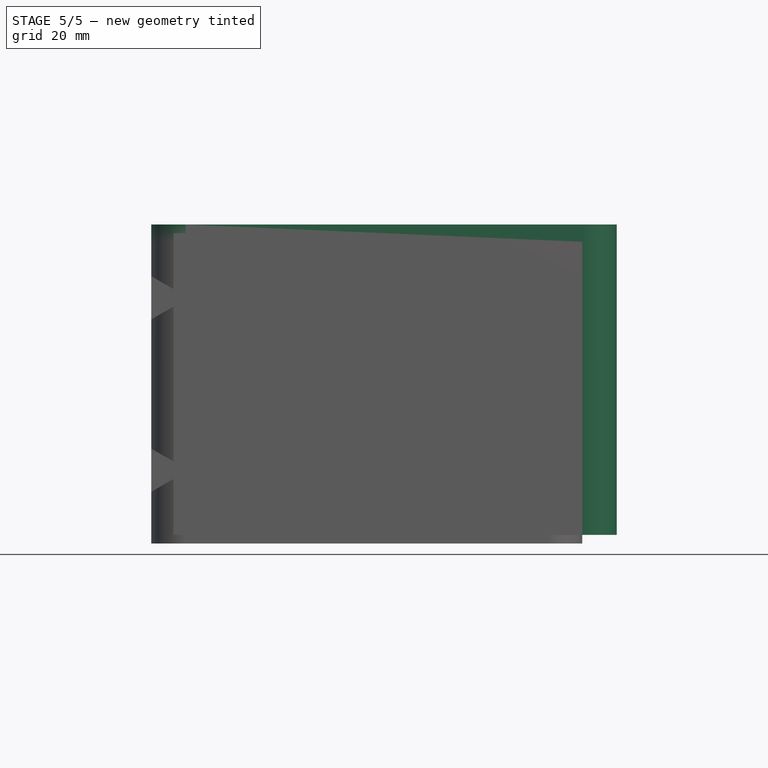
[diagram: stage 5 of 5 — front view after this stage's code; geometry added in this stage tinted green]
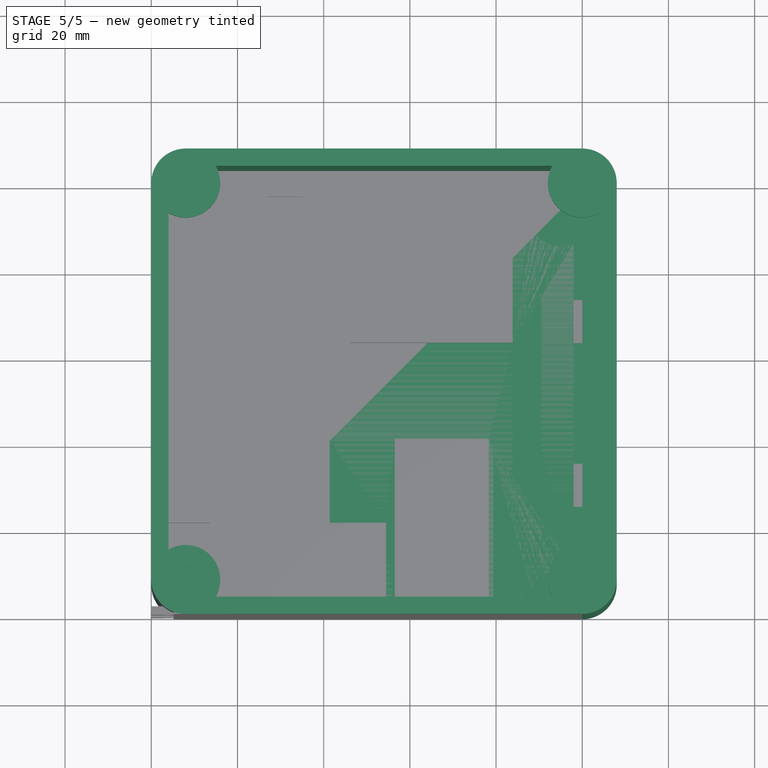
[diagram: stage 5 of 5 — top view after this stage's code; geometry added in this stage tinted green]
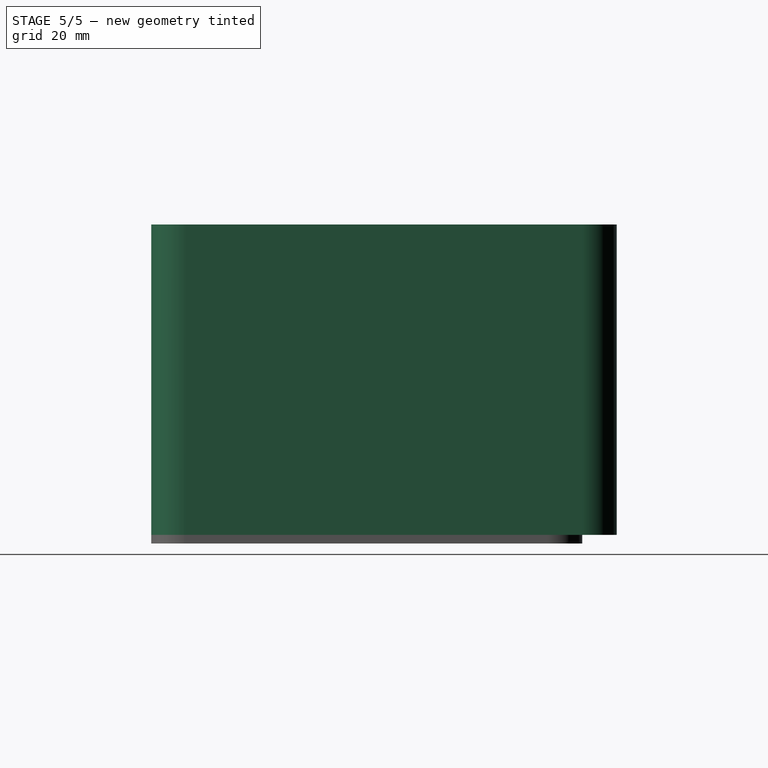
[diagram: stage 5 of 5 — right view after this stage's code; geometry added in this stage tinted green]
FEATURE [Sketcher::SketchObject] Sketch004
  MapMode = 5
  Support = -> [XY_Plane001]
  sketch-geometry (4):
    g0: LineSegment StartX=0 StartY=0 StartZ=0 EndX=108 EndY=0 EndZ=0
    g1: LineSegment StartX=108 StartY=0 StartZ=0 EndX=108 EndY=108 EndZ=0
    g2: LineSegment StartX=108 StartY=108 StartZ=0 EndX=0 EndY=108 EndZ=0
    g3: LineSegment StartX=0 StartY=108 StartZ=0 EndX=0 EndY=0 EndZ=0
  constraints (13):
    c: Coincident(g0,g1)
    c: Coincident(g1,g2)
    c: Coincident(g2,g3)
    c: Coincident(g3,g0)
    c: Horizontal(g0)
    c: Horizontal(g2)
    c: Vertical(g1)
    c: Vertical(g3)
    c: Coincident(g0,g-1)
    c: Equal(g0,g1)
    c: Equal(g1,g2)
    c: Equal(g2,g3)
    c: DistanceX(g0,g0) = 108
FEATURE [PartDesign::Pad] Pad004
  Length = 72
  Length2 = 100
  Profile = -> Sketch004
  Type = 0
FEATURE [Sketcher::SketchObject] Sketch005
  MapMode = 5
  Placement = pos=(0,0,72) rot=(0,0,1;0rad)
  Support = -> [Pad004]
  sketch-geometry (4):
    g0: LineSegment StartX=4 StartY=4 StartZ=0 EndX=104 EndY=4 EndZ=0
    g1: LineSegment StartX=104 StartY=4 StartZ=0 EndX=104 EndY=104 EndZ=0
    g2: LineSegment StartX=104 StartY=104 StartZ=0 EndX=4 EndY=104 EndZ=0
    g3: LineSegment StartX=4 StartY=104 StartZ=0 EndX=4 EndY=4 EndZ=0
  constraints (14):
    c: Coincident(g0,g1)
    c: Coincident(g1,g2)
    c: Coincident(g2,g3)
    c: Coincident(g3,g0)
    c: Horizontal(g0)
    c: Horizontal(g2)
    c: Vertical(g1)
    c: Vertical(g3)
    c: Equal(g0,g1)
    c: Equal(g1,g2)
    c: Equal(g2,g3)
    c: DistanceX(g0,g0) = 100
    c: DistanceX(g-2,g0) = 4
    c: DistanceY(g-1,g0) = 4
FEATURE [PartDesign::Pocket] Pocket
  BaseFeature = -> Pad004
  Length = 70
  Length2 = 100
  Profile = -> Sketch005
  Type = 0
FEATURE [PartDesign::Fillet] Fillet
  Base = -> Pocket [Edge2,Edge8,Edge1,Edge5]
  BaseFeature = -> Pocket
  Radius = 8
FEATURE [Sketcher::SketchObject] Sketch006
  ExternalGeometry = -> [Fillet]
  MapMode = 5
  Placement = pos=(0,0,72) rot=(0,0,1;0rad)
  Support = -> [Fillet]
  sketch-geometry (4):
    g0: Circle CenterX=8 CenterY=8 CenterZ=0 NormalX=0 NormalY=0 NormalZ=1 AngleXU=0 Radius=8
    g1: Circle CenterX=8 CenterY=100 CenterZ=0 NormalX=0 NormalY=0 NormalZ=1 AngleXU=0 Radius=8
    g2: Circle CenterX=100 CenterY=100 CenterZ=0 NormalX=0 NormalY=0 NormalZ=1 AngleXU=0 Radius=8
    g3: Circle CenterX=100 CenterY=8 CenterZ=0 NormalX=0 NormalY=0 NormalZ=1 AngleXU=0 Radius=8
  constraints (8):
    c: Radius(g0) = 8
    c: Coincident(g-3,g0)
    c: Equal(g3,g2)
    c: Equal(g2,g1)
    c: Equal(g1,g0)
    c: Coincident(g2,g-4)
    c: Coincident(g1,g-6)
    c: Coincident(g3,g-5)
FEATURE [PartDesign::Pad] Pad005
  BaseFeature = -> Fillet
  Length = 4
  Length2 = 100
  Profile = -> Sketch006
  Reversed = true
  Type = 0
FEATURE [Sketcher::SketchObject] Sketch007
  ExternalGeometry = -> [Pad005]
  MapMode = 5
  Placement = pos=(0,0,72) rot=(0,0,1;0rad)
  Support = -> [Pad005]
  sketch-geometry (4):
    g0: Circle CenterX=8 CenterY=100 CenterZ=0 NormalX=0 NormalY=0 NormalZ=1 AngleXU=0 Radius=3.1
    g1: Circle CenterX=100 CenterY=100 CenterZ=0 NormalX=0 NormalY=0 NormalZ=1 AngleXU=0 Radius=3.1
    g2: Circle CenterX=8 CenterY=8 CenterZ=0 NormalX=0 NormalY=0 NormalZ=1 AngleXU=0 Radius=3.1
    g3: Circle CenterX=100 CenterY=8 CenterZ=0 NormalX=0 NormalY=0 NormalZ=1 AngleXU=0 Radius=3.1
  constraints (8):
    c: Equal(g0,g1)
    c: Equal(g1,g2)
    c: Equal(g2,g3)
    c: Radius(g0) = 3.1
    c: Coincident(g0,g-4)
    c: Coincident(g1,g-3)
    c: Coincident(g3,g-6)
    c: Coincident(g2,g-5)
FEATURE [PartDesign::Pocket] Pocket001
  BaseFeature = -> Pad005
  Length = 1
  Length2 = 100
  Profile = -> Sketch007
  Type = 0
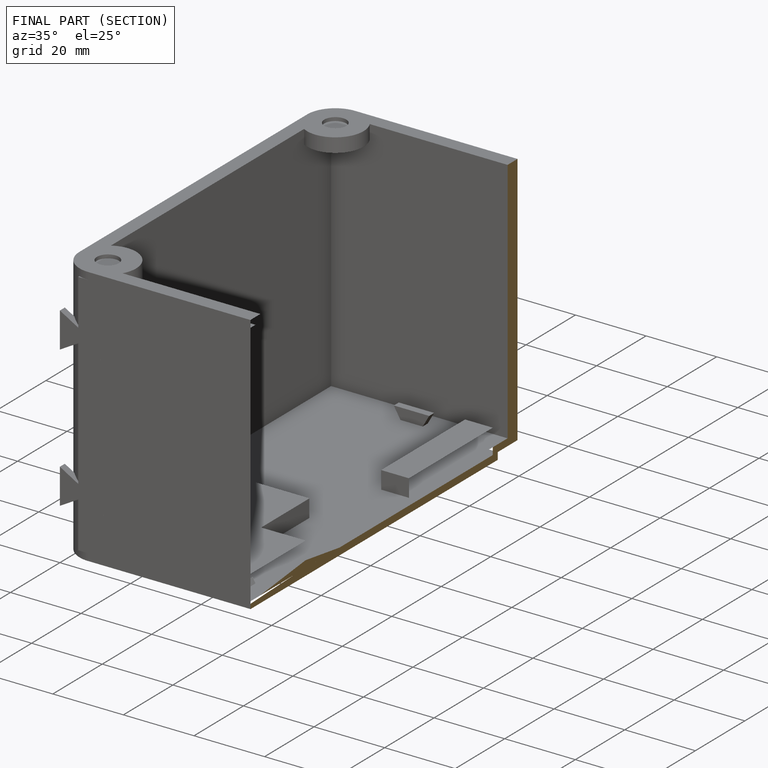
[diagram: finished part — half-section view (interior)]
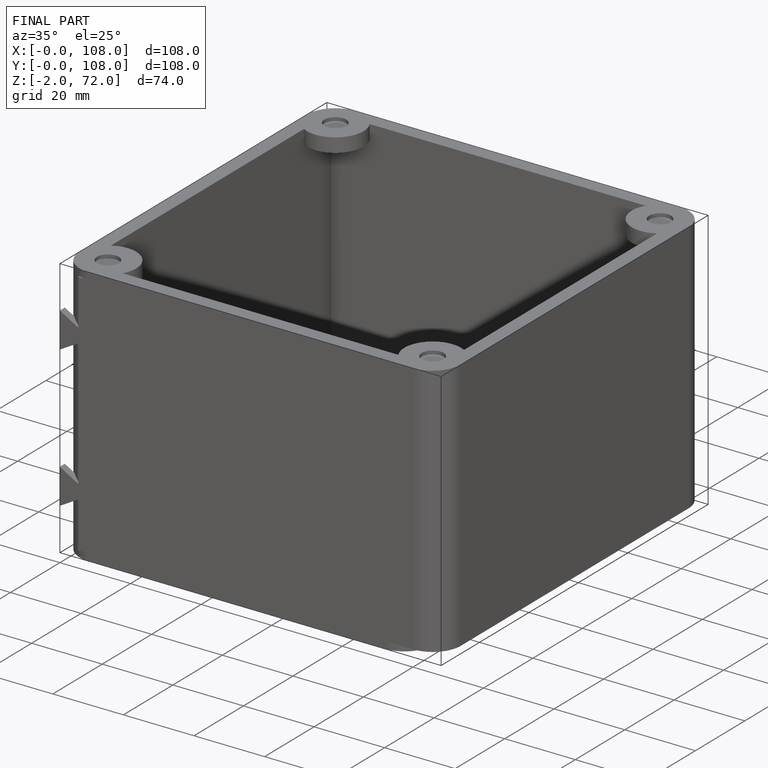
[diagram: finished part — iso view with bounding-box wireframe]
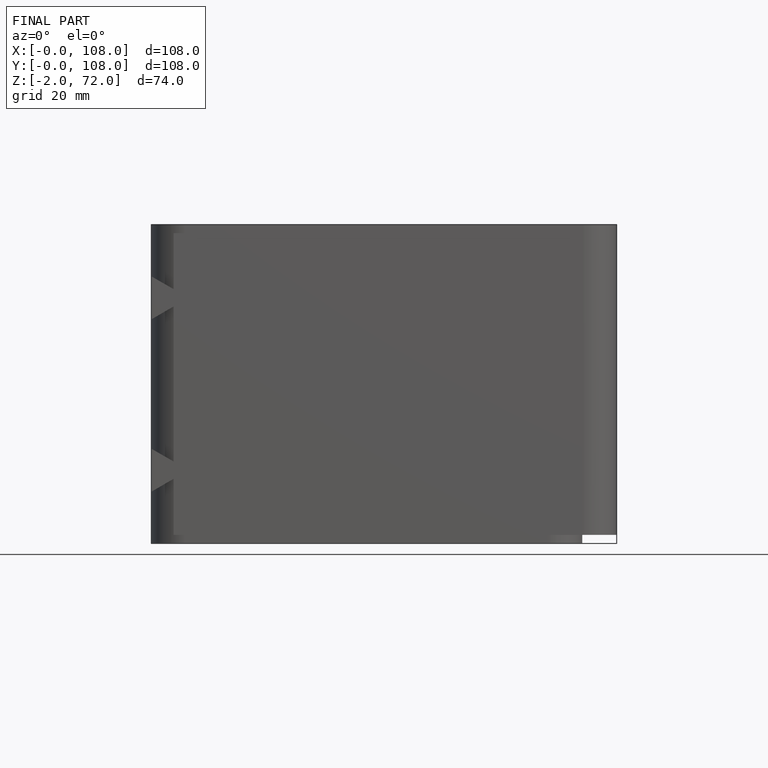
[diagram: finished part — front view with bounding-box wireframe]
